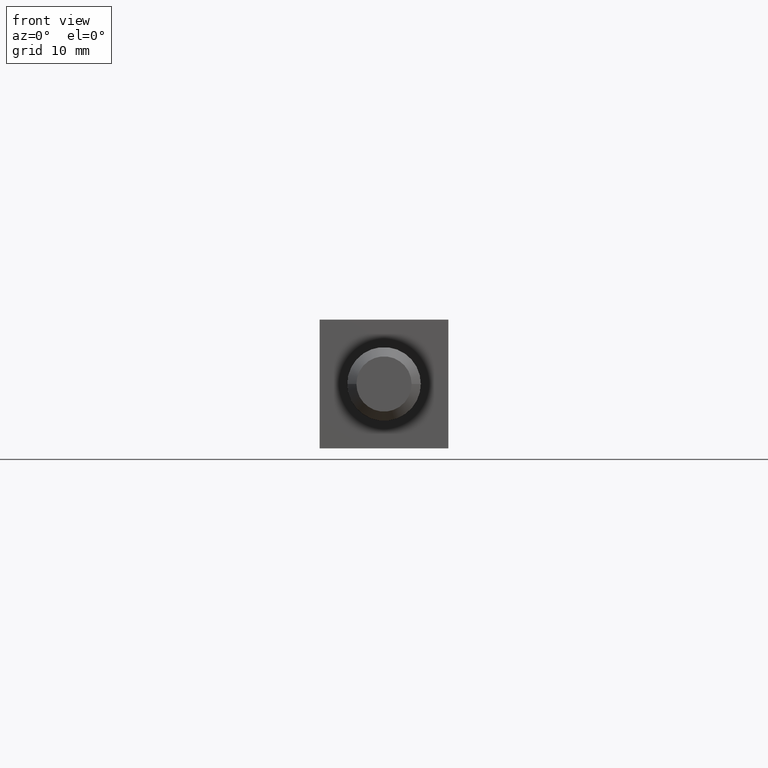
[diagram: clean part render]
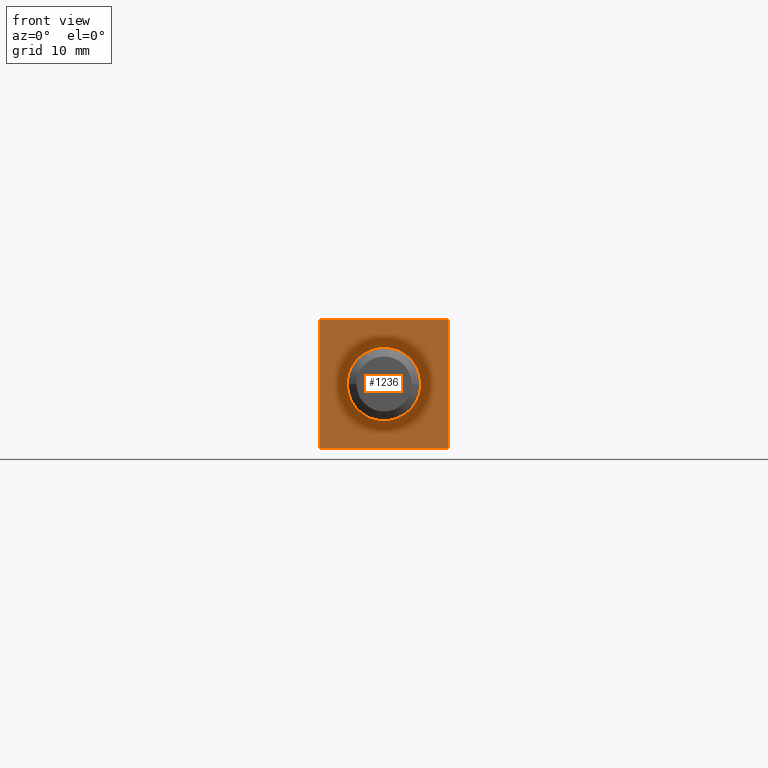
[diagram: same view with one face highlighted and labeled with its STEP entity id]
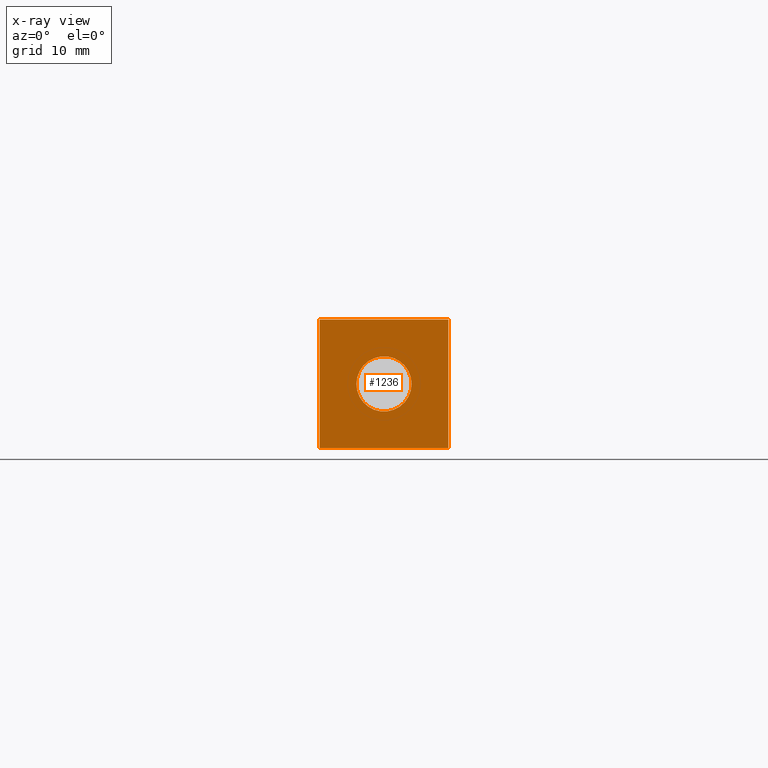
[diagram: x-ray of the same camera — body ghosted, the highlighted face saturated]
A machine part, front view. The second image highlights one B-rep face of the part: STEP entity #1236.
The next image is the same camera in x-ray: the body ghosted, the highlighted face saturated — about 0% of this face is hidden behind the body in this view.
In plain terms, the highlighted planar face has unit normal (-0, 1, 0).
Its self-contained STEP definition (entity closure, byte-faithful):
#227 = ORIENTED_EDGE ( 'NONE', *, *, #5476, .T. ) ;
#402 = CARTESIAN_POINT ( 'NONE',  ( -6.999999999999998200, -8.572527594031471200E-016, 7.000000000000000000 ) ) ;
#653 = DIRECTION ( 'NONE',  ( 1.239088197126291100E-016, 1.375664245990883100E-032, 1.000000000000000000 ) ) ;
#715 = ORIENTED_EDGE ( 'NONE', *, *, #4909, .F. ) ;
#774 = CARTESIAN_POINT ( 'NONE',  ( -7.000000000000000000, -8.572527594031473200E-016, -6.999999999999999100 ) ) ;
#883 = PLANE ( 'NONE',  #2817 ) ;
#1236 = ADVANCED_FACE ( 'NONE', ( #12206, #3330 ), #883, .F. ) ;
#1847 = DIRECTION ( 'NONE',  ( -1.224646799147353000E-016, 1.000000000000000000, 1.417811484810934900E-033 ) ) ;
#2254 = DIRECTION ( 'NONE',  ( -1.000000000000000000, -1.224646799147353000E-016, 0.0000000000000000000 ) ) ;
#2280 = EDGE_CURVE ( 'NONE', #6290, #5656, #10088, .T. ) ;
#2445 = CARTESIAN_POINT ( 'NONE',  ( 7.000000000000002700, 8.572527594031475200E-016, 7.000000000000000000 ) ) ;
#2817 = AXIS2_PLACEMENT_3D ( 'NONE', #12369, #1847, #7608 ) ;
#3011 = CARTESIAN_POINT ( 'NONE',  ( 4.499601494138601500E-032, -3.674203449738651400E-016, 0.0000000000000000000 ) ) ;
#3326 = CARTESIAN_POINT ( 'NONE',  ( 7.000000000000000900, 8.572527594031474200E-016, -7.000000000000000000 ) ) ;
#3330 = FACE_OUTER_BOUND ( 'NONE', #6109, .T. ) ;
#3781 = VECTOR ( 'NONE', #653, 1000.000000000000000 ) ;
#3822 = CARTESIAN_POINT ( 'NONE',  ( -3.000214798500902900, -7.350326440822314800E-016, 0.0000000000000000000 ) ) ;
#4199 = VECTOR ( 'NONE', #4454, 1000.000000000000000 ) ;
#4454 = DIRECTION ( 'NONE',  ( -1.000000000000000000, -1.224646799147353000E-016, 6.195440985631452900E-017 ) ) ;
#4882 = VERTEX_POINT ( 'NONE', #2445 ) ;
#4909 = EDGE_CURVE ( 'NONE', #6811, #8408, #5108, .T. ) ;
#5108 = LINE ( 'NONE', #10201, #4199 ) ;
#5212 = AXIS2_PLACEMENT_3D ( 'NONE', #6312, #8186, #6270 ) ;
#5242 = DIRECTION ( 'NONE',  ( 1.000000000000000000, 1.224646799147353000E-016, 0.0000000000000000000 ) ) ;
#5476 = EDGE_CURVE ( 'NONE', #5656, #6290, #6358, .T. ) ;
#5656 = VERTEX_POINT ( 'NONE', #3822 ) ;
#5688 = EDGE_LOOP ( 'NONE', ( #227, #8561 ) ) ;
#5702 = VERTEX_POINT ( 'NONE', #11458 ) ;
#5731 = LINE ( 'NONE', #3326, #10387 ) ;
#6109 = EDGE_LOOP ( 'NONE', ( #10986, #11229, #8384, #715 ) ) ;
#6270 = DIRECTION ( 'NONE',  ( -1.000000000000000000, -1.224646799147353000E-016, 0.0000000000000000000 ) ) ;
#6290 = VERTEX_POINT ( 'NONE', #9190 ) ;
#6312 = CARTESIAN_POINT ( 'NONE',  ( 4.499601494138601500E-032, -3.674203449738651400E-016, 0.0000000000000000000 ) ) ;
#6349 = LINE ( 'NONE', #774, #3781 ) ;
#6358 = CIRCLE ( 'NONE', #5212, 3.000214798500902900 ) ;
#6621 = DIRECTION ( 'NONE',  ( -1.239088197126290800E-016, -1.375664245990882800E-032, -1.000000000000000000 ) ) ;
#6811 = VERTEX_POINT ( 'NONE', #9693 ) ;
#6919 = VECTOR ( 'NONE', #5242, 1000.000000000000000 ) ;
#6983 = AXIS2_PLACEMENT_3D ( 'NONE', #3011, #8831, #2254 ) ;
#7108 = EDGE_CURVE ( 'NONE', #8408, #5702, #6349, .T. ) ;
#7608 = DIRECTION ( 'NONE',  ( -1.000000000000000000, -1.224646799147353000E-016, 0.0000000000000000000 ) ) ;
#8186 = DIRECTION ( 'NONE',  ( -1.224646799147353000E-016, 1.000000000000000000, -0.0000000000000000000 ) ) ;
#8288 = CARTESIAN_POINT ( 'NONE',  ( -7.000000000000000000, -8.572527594031473200E-016, -6.999999999999999100 ) ) ;
#8384 = ORIENTED_EDGE ( 'NONE', *, *, #7108, .F. ) ;
#8408 = VERTEX_POINT ( 'NONE', #8288 ) ;
#8561 = ORIENTED_EDGE ( 'NONE', *, *, #2280, .T. ) ;
#8831 = DIRECTION ( 'NONE',  ( -1.224646799147353000E-016, 1.000000000000000000, -0.0000000000000000000 ) ) ;
#9190 = CARTESIAN_POINT ( 'NONE',  ( 3.000214798500902900, 0.0000000000000000000, 3.674203449738651900E-016 ) ) ;
#9315 = LINE ( 'NONE', #402, #6919 ) ;
#9693 = CARTESIAN_POINT ( 'NONE',  ( 7.000000000000000900, 8.572527594031474200E-016, -7.000000000000000000 ) ) ;
#9734 = EDGE_CURVE ( 'NONE', #4882, #6811, #5731, .T. ) ;
#10088 = CIRCLE ( 'NONE', #6983, 3.000214798500902900 ) ;
#10201 = CARTESIAN_POINT ( 'NONE',  ( -7.000000000000000000, -8.572527594031473200E-016, -6.999999999999999100 ) ) ;
#10387 = VECTOR ( 'NONE', #6621, 1000.000000000000000 ) ;
#10986 = ORIENTED_EDGE ( 'NONE', *, *, #9734, .F. ) ;
#11229 = ORIENTED_EDGE ( 'NONE', *, *, #12239, .F. ) ;
#11458 = CARTESIAN_POINT ( 'NONE',  ( -6.999999999999998200, -8.572527594031471200E-016, 7.000000000000000000 ) ) ;
#12206 = FACE_BOUND ( 'NONE', #5688, .T. ) ;
#12239 = EDGE_CURVE ( 'NONE', #5702, #4882, #9315, .T. ) ;
#12369 = CARTESIAN_POINT ( 'NONE',  ( 3.416333631897037300E-047, -2.789648112644088300E-031, -3.955195132687936700E-064 ) ) ;